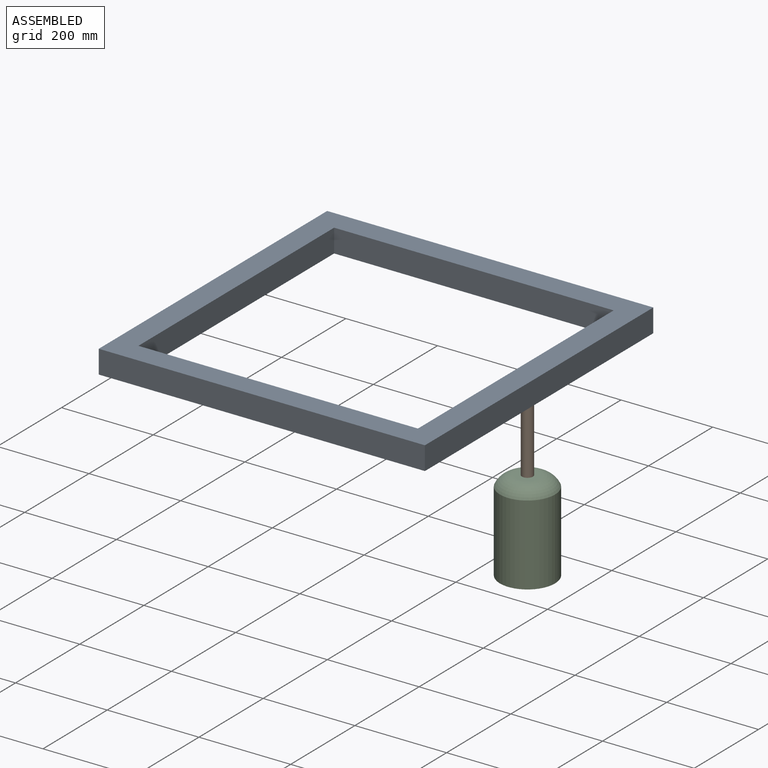
[diagram: assembled view]
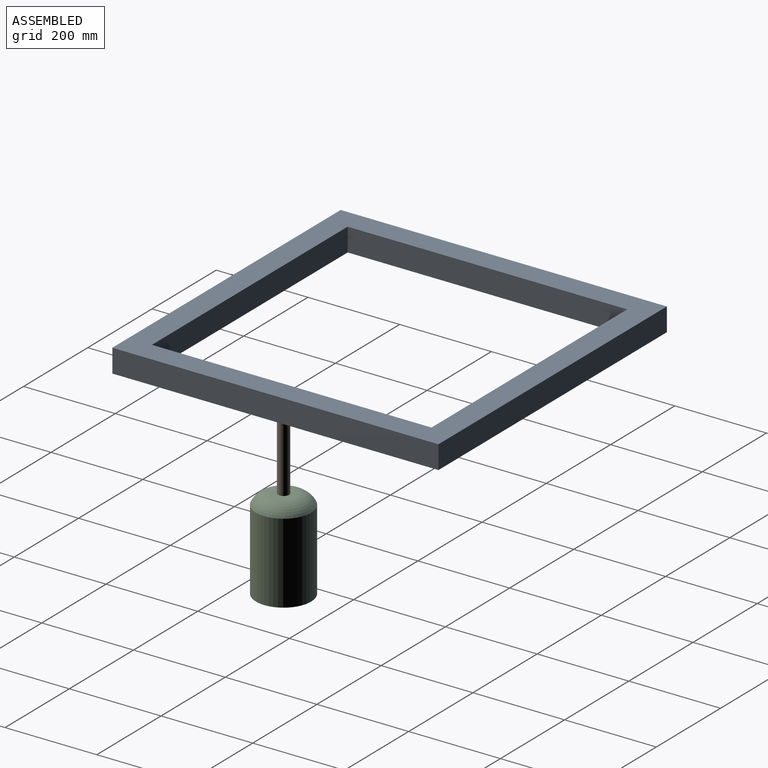
[diagram: assembled view, second angle]
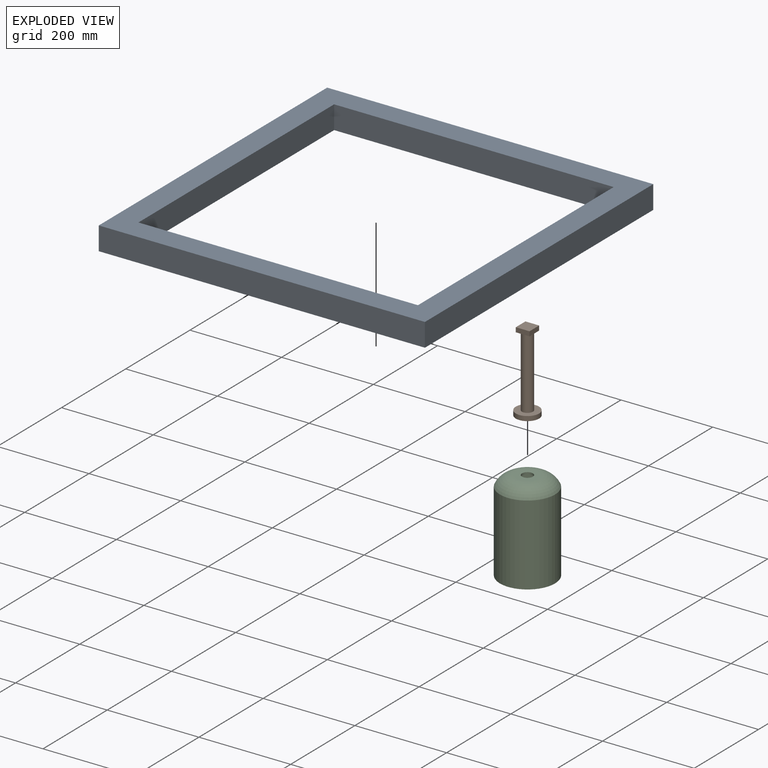
[diagram: exploded view]
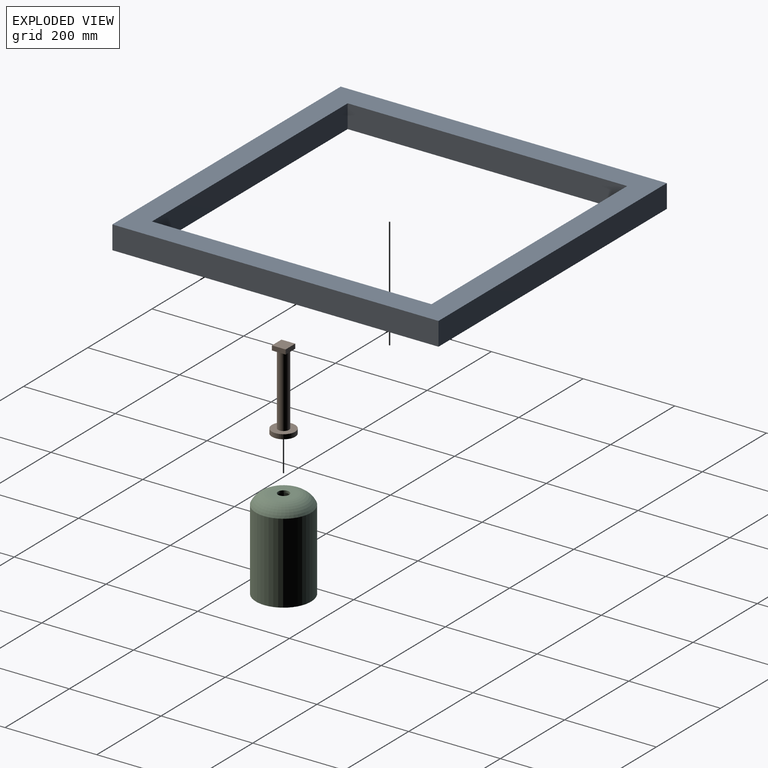
[diagram: exploded view, second angle]
ASSEMBLY  parts=3 mates=2
PART A: 20 faces, bbox 711.2x711.2x50.8 mm
  f0: plane 711.2x711.2mm, normal (0,0,-1), area 132393.3mm2, adj f1,f2,f3,f4,f5,f6,f7,f8
  f1: plane 711.2x50.8mm, normal (0,-1,0), area 36129mm2, adj f0,f2,f8,f9
  f2: plane 711.2x50.8mm, normal (1,0,0), area 36129mm2, adj f0,f1,f3,f9
  f3: plane 711.2x50.8mm, normal (0,1,0), area 36129mm2, adj f0,f2,f8,f9
  f4: plane 609.6x50.8mm, normal (-1,0,0), area 30967.7mm2, adj f0,f5,f7,f9
  f5: plane 609.6x50.8mm, normal (0,1,0), area 30967.7mm2, adj f0,f4,f6,f9
  f6: plane 609.6x50.8mm, normal (1,0,0), area 30967.7mm2, adj f0,f5,f7,f9
  f7: plane 609.6x50.8mm, normal (0,-1,0), area 30967.7mm2, adj f0,f4,f6,f9
  f8: plane 711.2x50.8mm, normal (-1,0,0), area 36129mm2, adj f0,f1,f3,f9
  f9: plane 711.2x711.2mm, normal (0,0,1), area 134193.3mm2, adj f1,f2,f3,f4,f5,f6,f7,f8
  f10: plane 30x10mm, normal (-1,0,0), area 300mm2, adj f0,f11,f13,f14
  f11: plane 30x10mm, normal (0,1,0), area 300mm2, adj f0,f10,f12,f14
  f12: plane 30x10mm, normal (1,0,0), area 300mm2, adj f0,f11,f13,f14
  f13: plane 30x10mm, normal (0,-1,0), area 300mm2, adj f0,f10,f12,f14
  f14: plane 30x30mm, normal (0,0,-1), area 900mm2, adj f10,f11,f12,f13
  f15: plane 30x10mm, normal (0,-1,0), area 300mm2, adj f0,f16,f18,f19
  f16: plane 30x10mm, normal (-1,0,0), area 300mm2, adj f0,f15,f17,f19
  f17: plane 30x10mm, normal (0,1,0), area 300mm2, adj f0,f16,f18,f19
  f18: plane 30x10mm, normal (1,0,0), area 300mm2, adj f0,f15,f17,f19
  f19: plane 30x30mm, normal (0,0,-1), area 900mm2, adj f15,f16,f17,f18
PART B: 10 faces, bbox 50.8x50.8x175 mm
  f0: cylinder r=12mm len=155mm, axis (0,0,-1), area 11686.7mm2, adj f6,f9
  f1: plane 30x10mm, normal (0,-1,0), area 300mm2, adj f2,f4,f5,f6
  f2: plane 30x10mm, normal (1,0,0), area 300mm2, adj f1,f3,f5,f6
  f3: plane 30x10mm, normal (0,1,0), area 300mm2, adj f2,f4,f5,f6
  f4: plane 30x10mm, normal (-1,0,0), area 300mm2, adj f1,f3,f5,f6
  f5: plane 30x30mm, normal (0,0,1), area 900mm2, adj f1,f2,f3,f4
  f6: plane 30x30mm, normal (0,0,-1), area 447.6mm2, adj f0,f1,f2,f3,f4
  f7: cylinder r=25.4mm len=50.8mm, axis (0,0,1), area 1595.9mm2, adj f8,f9
  f8: plane 50.8x50.8mm, normal (0,0,-1), area 2026.8mm2, adj f7
  f9: plane 50.8x50.8mm, normal (0,0,1), area 1574.4mm2, adj f0,f7
PART C: 9 faces, bbox 120.2x120.2x197.7 mm
  f0: cylinder r=60.12mm len=175.26mm, axis (0,0,1), area 66201.2mm2, adj f1,f8
  f1: torus R=25.4mm, axis (0,0,1), area 12336.4mm2, adj f0,f2
  f2: plane 50.8x50.8mm, normal (0,0,1), area 1574.4mm2, adj f1,f3
  f3: cylinder r=12mm len=24mm, axis (0,0,1), area 357.3mm2, adj f2,f4
  f4: plane 51.11x51.11mm, normal (0,0,-1), area 1598.8mm2, adj f3,f5
  f5: torus R=25.55mm, axis (0,0,1), area 9257.2mm2, adj f4,f6
  f6: cylinder r=54.51mm len=171.99mm, axis (0,0,1), area 58906.2mm2, adj f5,f7
  f7: plane 109.02x109.02mm, normal (0,0,1), area 9334.9mm2, adj f6
  f8: plane 120.24x120.24mm, normal (0,0,-1), area 11354.2mm2, adj f0
PLACE A t=(-153.51,-29.14,4.65)mm
PLACE B t=(176.69,-29.14,-150.35)mm
PLACE C t=(176.69,-29.14,-145.71)mm
MATE fastened B.f0 <-> A.f19  axis (0,0,1) through (176.69,-29.14,14.65)mm
MATE slider B.f0 <-> C.f0  axis (0,0,1) through (176.69,-29.14,-150.35)mm
